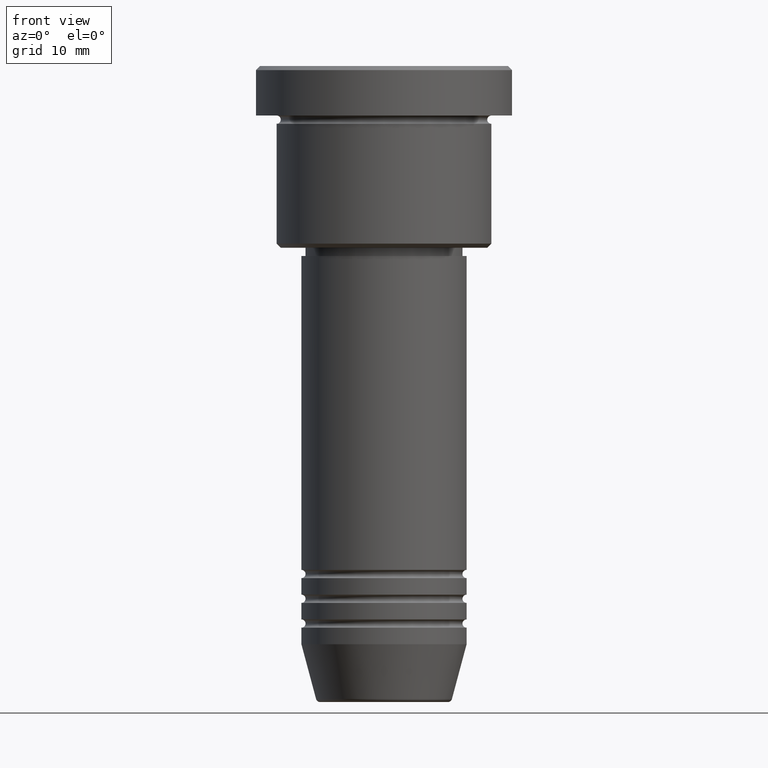
[diagram: clean part render]
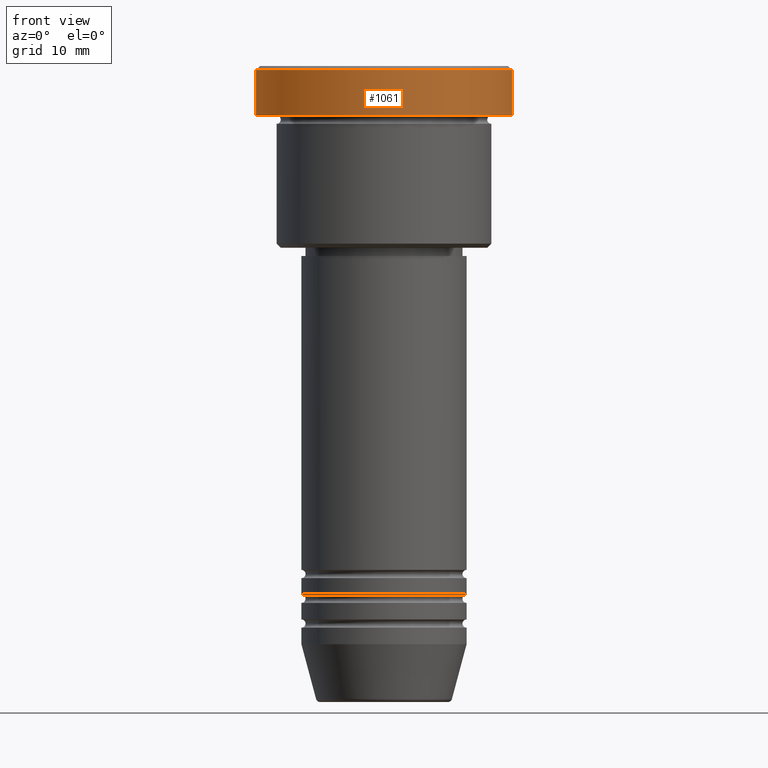
[diagram: same view with one face highlighted and labeled with its STEP entity id]
A machine part, front view. The second image highlights one B-rep face of the part: STEP entity #1061.
In plain terms, the highlighted cylindrical surface (partial cylindrical patch) has radius 15.5 mm, axis along (-0, -0, 1).
Its self-contained STEP definition (entity closure, byte-faithful):
#3 = DIRECTION ( 'NONE',  ( -0.000000000000000000, -0.000000000000000000, 1.000000000000000000 ) ) ;
#86 = CARTESIAN_POINT ( 'NONE',  ( 0.000000000000000000, 0.000000000000000000, -5.999999999999995559 ) ) ;
#139 = CARTESIAN_POINT ( 'NONE',  ( 15.50000000000000000, 0.000000000000000000, -0.4999999999999987232 ) ) ;
#165 = DIRECTION ( 'NONE',  ( 1.000000000000000000, 0.000000000000000000, 0.000000000000000000 ) ) ;
#189 = DIRECTION ( 'NONE',  ( -0.000000000000000000, -0.000000000000000000, 1.000000000000000000 ) ) ;
#213 = ORIENTED_EDGE ( 'NONE', *, *, #772, .T. ) ;
#224 = ORIENTED_EDGE ( 'NONE', *, *, #810, .T. ) ;
#233 = CARTESIAN_POINT ( 'NONE',  ( -15.50000000000000000, 1.898202538678397557E-15, 0.000000000000000000 ) ) ;
#241 = CARTESIAN_POINT ( 'NONE',  ( 15.50000000000000000, 0.000000000000000000, 0.000000000000000000 ) ) ;
#253 = CARTESIAN_POINT ( 'NONE',  ( 0.000000000000000000, 0.000000000000000000, 0.000000000000000000 ) ) ;
#260 = CARTESIAN_POINT ( 'NONE',  ( -15.50000000000000000, 1.898202538678397557E-15, -5.999999999999995559 ) ) ;
#347 = VECTOR ( 'NONE', #3, 1000.000000000000000 ) ;
#368 = AXIS2_PLACEMENT_3D ( 'NONE', #756, #1109, #859 ) ;
#371 = EDGE_LOOP ( 'NONE', ( #923, #213, #822, #224 ) ) ;
#406 = CARTESIAN_POINT ( 'NONE',  ( 15.50000000000000000, 0.000000000000000000, -5.999999999999995559 ) ) ;
#441 = CIRCLE ( 'NONE', #993, 15.50000000000000000 ) ;
#567 = CIRCLE ( 'NONE', #368, 15.50000000000000000 ) ;
#592 = DIRECTION ( 'NONE',  ( -0.000000000000000000, -0.000000000000000000, 1.000000000000000000 ) ) ;
#608 = DIRECTION ( 'NONE',  ( -0.000000000000000000, -0.000000000000000000, 1.000000000000000000 ) ) ;
#654 = CARTESIAN_POINT ( 'NONE',  ( -15.50000000000000000, 1.898202538678397557E-15, -0.4999999999999987232 ) ) ;
#666 = EDGE_CURVE ( 'NONE', #843, #678, #968, .T. ) ;
#678 = VERTEX_POINT ( 'NONE', #139 ) ;
#680 = LINE ( 'NONE', #233, #347 ) ;
#756 = CARTESIAN_POINT ( 'NONE',  ( 0.000000000000000000, 0.000000000000000000, -0.4999999999999987232 ) ) ;
#772 = EDGE_CURVE ( 'NONE', #1157, #843, #441, .T. ) ;
#810 = EDGE_CURVE ( 'NONE', #678, #846, #567, .T. ) ;
#822 = ORIENTED_EDGE ( 'NONE', *, *, #666, .T. ) ;
#843 = VERTEX_POINT ( 'NONE', #406 ) ;
#846 = VERTEX_POINT ( 'NONE', #654 ) ;
#859 = DIRECTION ( 'NONE',  ( 1.000000000000000000, 0.000000000000000000, 0.000000000000000000 ) ) ;
#907 = DIRECTION ( 'NONE',  ( 1.000000000000000000, 0.000000000000000000, 0.000000000000000000 ) ) ;
#923 = ORIENTED_EDGE ( 'NONE', *, *, #1079, .F. ) ;
#933 = AXIS2_PLACEMENT_3D ( 'NONE', #253, #592, #165 ) ;
#968 = LINE ( 'NONE', #241, #1164 ) ;
#993 = AXIS2_PLACEMENT_3D ( 'NONE', #86, #189, #907 ) ;
#1049 = CYLINDRICAL_SURFACE ( 'NONE', #933, 15.50000000000000000 ) ;
#1061 = ADVANCED_FACE ( 'NONE', ( #1147 ), #1049, .T. ) ;
#1079 = EDGE_CURVE ( 'NONE', #1157, #846, #680, .T. ) ;
#1109 = DIRECTION ( 'NONE',  ( 0.000000000000000000, 0.000000000000000000, -1.000000000000000000 ) ) ;
#1147 = FACE_OUTER_BOUND ( 'NONE', #371, .T. ) ;
#1157 = VERTEX_POINT ( 'NONE', #260 ) ;
#1164 = VECTOR ( 'NONE', #608, 1000.000000000000000 ) ;